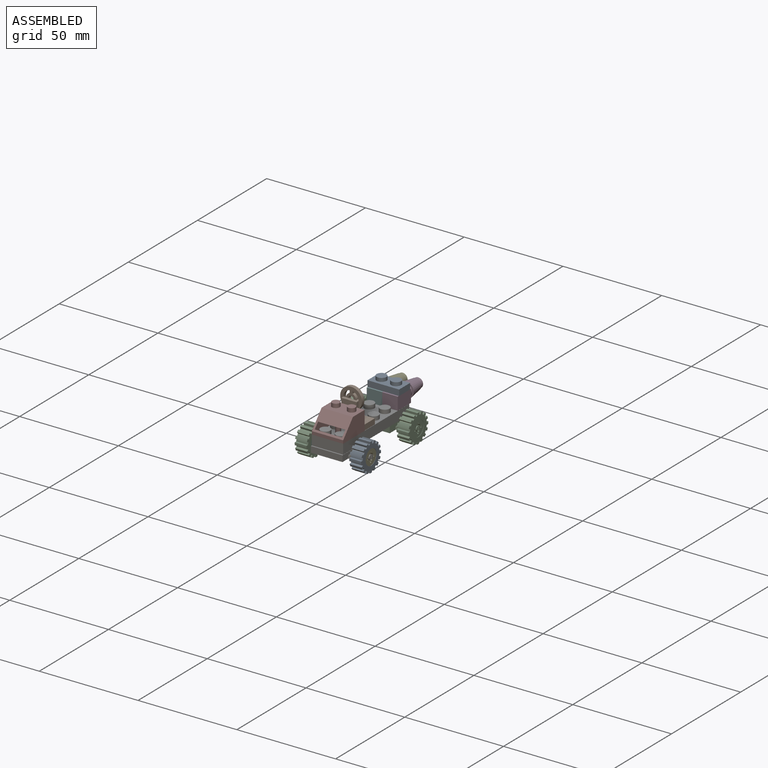
[diagram: assembled view]
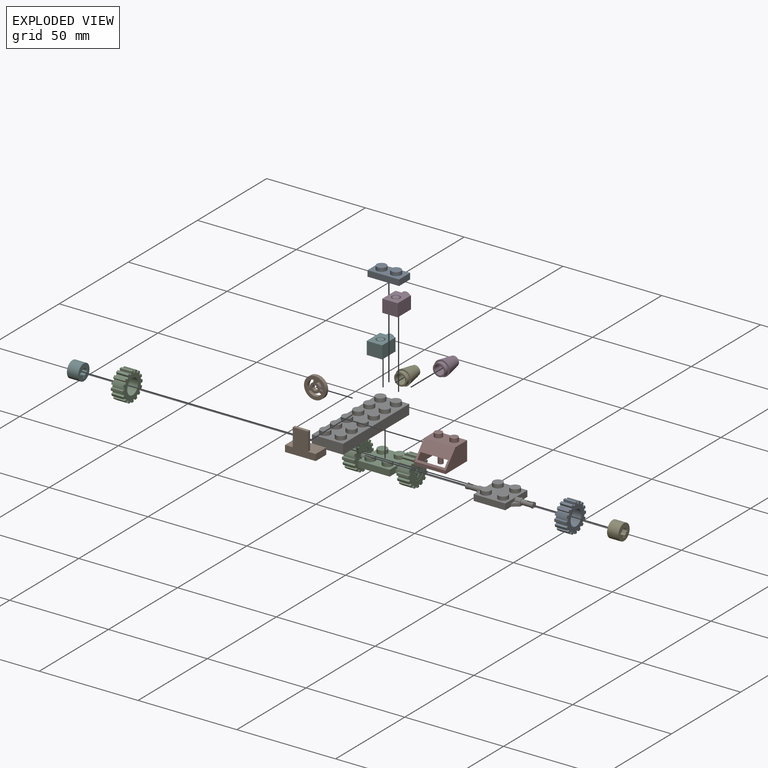
[diagram: exploded view]
GUIDED TOUR — MATED ASSEMBLY WITH SUBASSEMBLIES (Onshape document 5908bd3b1f64391017bcbc16, AutoMate assembly 5908bd3b1f64391017bcbc16_93580afd437a5e38cb3de206_40b358b850b188636dec0b28_default)

This assembly has 19 component occurrences arranged in 15 top-level units: 14 individual components plus 1 subassembly (S0). The tour has two levels: first the top level, where each subassembly is treated as one rigid unit; then each subassembly is toured internally in its own section (nesting deeper than one subassembly level is flattened into its subassembly's section).

Components are labeled P0..P18 across the whole record; subassembly units are labeled S0..S0. A mate is a constraint between two units; its type names the relative motion it leaves free:
  FASTENED — locks the two components together rigidly (no relative motion).
Axis/direction vectors are unit vectors and 'through' points are millimeter coordinates, both in the assembly's world frame.

TOP-LEVEL MATES (between units; each subassembly's internal mates are listed in its own section)
  1. FASTENED "Fastened 2": P16 <-> P18, direction (-1.000, 0.000, 0.000) through (-28.91, 1.36, -17.36) mm
  2. FASTENED "Fastened 4": P13 <-> P17, direction (1.000, 0.000, 0.000) through (-56.66, 1.36, -17.36) mm
  3. FASTENED "Fastened 9": P1 <-> P12, direction (0.000, 1.000, 0.000) through (-39.95, 11.06, 1.17) mm
  4. FASTENED "Fastened 10": P5 <-> P6, direction (0.000, 0.000, -1.000) through (-43.88, 37.84, -10.82) mm
  5. FASTENED "Fastened 7": P8 <-> P6, direction (-1.000, 0.000, 0.000) through (-39.95, -5.96, -10.82) mm
  6. FASTENED "Fastened 5": P6 <-> P18, direction (0.000, 0.000, -1.000) through (-39.91, 1.36, -15.82) mm
  7. FASTENED "Fastened 13": P4 <-> P5, direction (0.000, -1.000, 0.000) through (-43.86, 43.15, -6.83) mm
  8. FASTENED "Fastened 1": P17 <-> P18, direction (1.000, 0.000, 0.000) through (-50.91, 1.36, -17.36) mm
  9. FASTENED "Fastened 6": P6 <-> S0, direction (0.000, 0.000, -1.000) through (-40.07, 35.76, -15.82) mm
  10. FASTENED "Fastened 14": P11 <-> P3, direction (0.000, 0.000, -1.000) through (-39.93, 38.35, -4.38) mm
  11. FASTENED "Fastened 12": P14 <-> P3, direction (0.000, -1.000, 0.000) through (-36.01, 43.15, -6.83) mm
  12. FASTENED "Fastened 11": P3 <-> P6, direction (0.000, 0.000, -1.000) through (-36.03, 37.84, -10.82) mm
  13. FASTENED "Fastened 3": P0 <-> P16, direction (-1.000, 0.000, 0.000) through (-26.03, 1.36, -17.36) mm
  14. FASTENED "Fastened 8": P1 <-> P8, direction (0.000, -1.000, 0.000) through (-39.95, 9.52, -6.02) mm

TOP-LEVEL ASSEMBLY ORDER
  1. P6 — the base component [order heuristic]
  2. S0 — core [order heuristic]
  3. P3 — core [order heuristic]
  4. P5 — core [order heuristic]
  5. P8 [order verified]
  6. P1 — core [order heuristic]
  7. P4 — core [order heuristic]
  8. P14 — core [order heuristic]
  9. P18 — core [order heuristic]
  10. P13 — core [order heuristic]
  11. P17 — core [order heuristic]
  12. P0 — core [order heuristic]
  13. P16 — core [order heuristic]
  14. P11 [order verified]
  15. P12 [order verified]
Order-tag legend:
  [order verified] — this step's position reverses a verified removal order: the component was checked to insert without passing through the ones already placed.
  [order heuristic] — the first 12 components form the assembly's core: parts whose collision-free extraction could not be verified, listed in mate-graph order.

Of the 19 component occurrences, 14 carry the full construction recipe — the FeatureScript program that regenerates the part's solid from scratch; the rest are supplied as boundary geometry only. Each toured unit is shown spotlighted twice — assembled, then exploded with a leader line back to its socket (green = recipe-attached component, orange = geometry-only, blue = subassembly unit; the rest desaturated gray).
NOTE — this tour is split across 2 documents so each fits a 32k-token context. This is document 1: the component sections continue in the remaining 1 document, each repeating the header above.
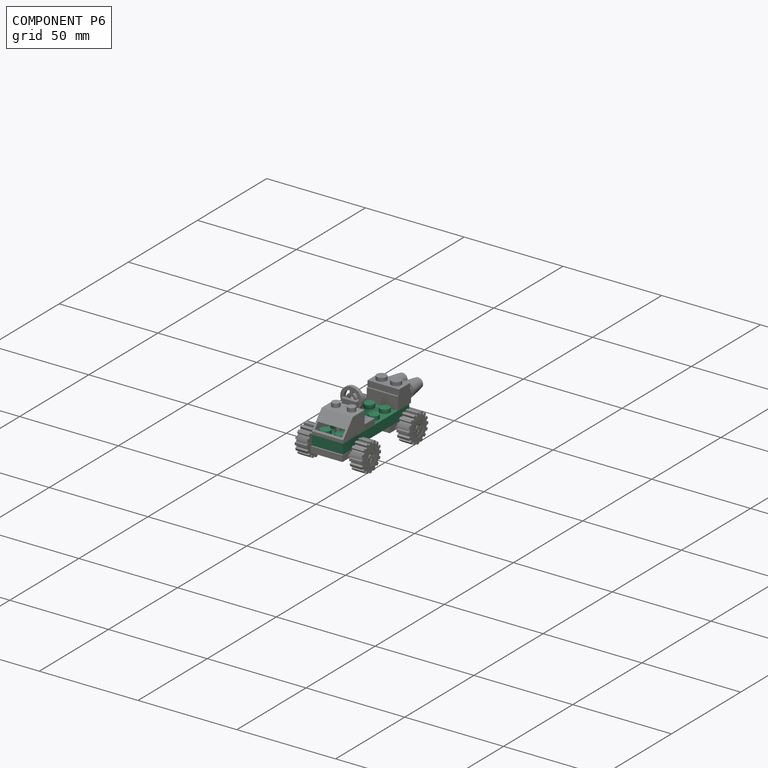
[diagram: component P6 — assembled]
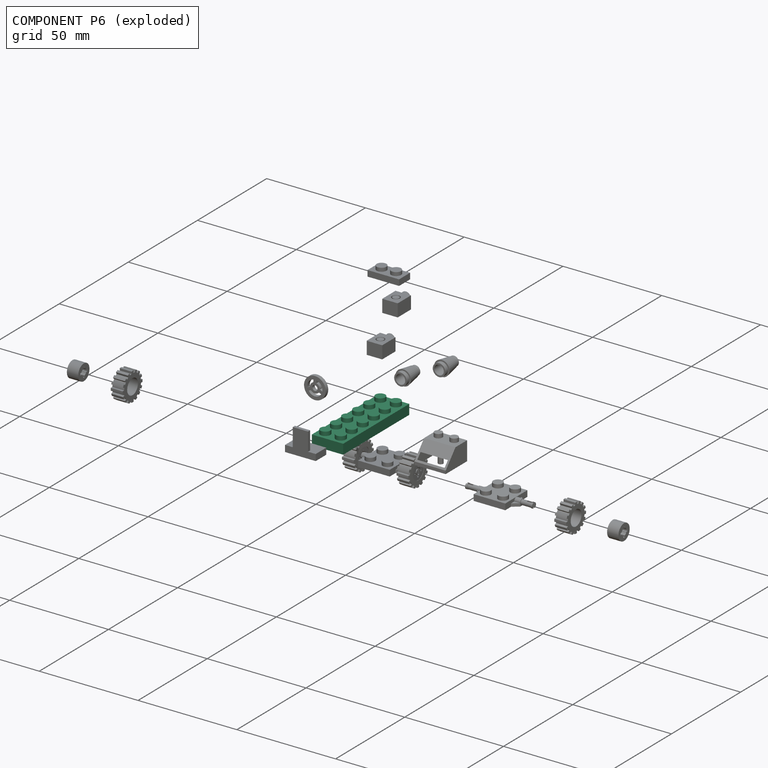
[diagram: component P6 — exploded]
COMPONENT P6 — recipe-attached (CADFS 00742789, mesh-verified: the recipe's output STEP matches this component's geometry to below the mesh-comparison resolution (tessellation chordal tolerance ~0.0763 mm)).
Held by: FASTENED mate "Fastened 10" to P5; FASTENED mate "Fastened 7" to P8; FASTENED mate "Fastened 5" to P18; FASTENED mate "Fastened 6" to P2; FASTENED mate "Fastened 11" to P3.
Construction recipe (FeatureScript — the CAD program that rebuilds this solid; sketch coordinates are in the units given by the * unit suffixes, e.g. mm):

FeatureScript 1511;
import(path : "onshape/std/geometry.fs", version : "1511.0");
import(path : "onshape/std/common.fs", version : "1511.0");
const mm = millimeter;
const VERTEX = EntityType.VERTEX;
const EDGE = EntityType.EDGE;
const FACE = EntityType.FACE;
const BODY = EntityType.BODY;
function v(x, y){return vector(x, y);}
function OD(order){return orderDisambiguation(order);}
function OSD(set){return originalSetDisambiguation(set);}
function TD(topology){return topologyDisambiguation(topology);}
function TDD(query){return trueDependencyDisambiguation(query);}
function sQuery(a, b, c) {return sketchEntityQuery(a, b, c);}

annotation { "Feature Type Name" : "Feature", "Feature Type Description" : "" }
export const myFeature = defineFeature(function(context is Context, id is Id, definition is map)
    precondition{}
    {
        {
            var Q0;
            Q0=qCreatedBy(makeId("Top.planeOp"),FACE);
            var sketch = newSketch(context, id + "F0", { "sketchPlane" : qUnion([Q0])});
            skLineSegment(sketch, "E0", {"start": v(-52.83, 62.4) * mm, "end": v(-52.83, 14.6) * mm});
            skLineSegment(sketch, "E1", {"start": v(-52.83, 62.4) * mm, "end": v(-36.98, 62.4) * mm});
            skLineSegment(sketch, "E2", {"start": v(-36.98, 14.6) * mm, "end": v(-36.98, 62.4) * mm});
            skLineSegment(sketch, "E3", {"start": v(-36.98, 14.6) * mm, "end": v(-52.83, 14.6) * mm});
            skSolve(sketch);
        }
        {
            var Q0;
            Q0 = qSketchRegion(id + "F0", true);
            extrude(context, id + "F1", {"entities" : qUnion([Q0]), "depth" : 5 * mm, "offsetDistance" : 25 * mm});
        }
        {
            var Q0;
            Q0=makeQuery(id+"F1.opExtrude","CAP_FACE",FACE,{"disambiguationData":[OSD([sQuery(id+"F0.wireOp",EDGE,"E0"),sQuery(id+"F0.wireOp",EDGE,"E1"),sQuery(id+"F0.wireOp",EDGE,"E2"),sQuery(id+"F0.wireOp",EDGE,"E3")])],"isStart":false});
            var sketch = newSketch(context, id + "F2", { "sketchPlane" : qUnion([Q0])});
            skCircle(sketch, "E4", {"center": v(-48.83, 58.4) * mm, "radius": 2.5 * mm});
            skCircle(sketch, "E5", {"center": v(-40.98, 58.4) * mm, "radius": 2.5 * mm});
            skCircle(sketch, "E6", {"center": v(-48.83, 18.6) * mm, "radius": 2.5 * mm});
            skCircle(sketch, "E7", {"center": v(-40.98, 18.6) * mm, "radius": 2.5 * mm});
            skCircle(sketch, "E8", {"center": v(-48.83, 50.4) * mm, "radius": 2.5 * mm});
            skCircle(sketch, "E9", {"center": v(-40.98, 50.4) * mm, "radius": 2.5 * mm});
            skCircle(sketch, "E10", {"center": v(-48.83, 26.4) * mm, "radius": 2.5 * mm});
            skCircle(sketch, "E11", {"center": v(-40.98, 26.4) * mm, "radius": 2.5 * mm});
            skCircle(sketch, "E12", {"center": v(-48.83, 42.4) * mm, "radius": 2.5 * mm});
            skCircle(sketch, "E13", {"center": v(-40.98, 42.4) * mm, "radius": 2.5 * mm});
            skCircle(sketch, "E14", {"center": v(-48.83, 34.4) * mm, "radius": 2.5 * mm});
            skCircle(sketch, "E15", {"center": v(-40.98, 34.4) * mm, "radius": 2.5 * mm});
            skSolve(sketch);
        }
        {
            var Q0;
            Q0 = qSketchRegion(id + "F2", true);
            extrude(context, id + "F3", {"entities" : qUnion([Q0]), "operationType" : NewBodyOperationType.ADD, "depth" : 2 * mm, "offsetDistance" : 25 * mm});
        }
        {
            var Q0;
            Q0=makeQuery(id+"F1.opExtrude","CAP_FACE",FACE,{"disambiguationData":[OSD([sQuery(id+"F0.wireOp",EDGE,"E0"),sQuery(id+"F0.wireOp",EDGE,"E1"),sQuery(id+"F0.wireOp",EDGE,"E2"),sQuery(id+"F0.wireOp",EDGE,"E3")])],"isStart":true});
            var sketch = newSketch(context, id + "F4", { "sketchPlane" : qUnion([Q0])});
            skLineSegment(sketch, "E16", {"start": v(-51.52, -16.07) * mm, "end": v(-38.2, -16.07) * mm});
            skLineSegment(sketch, "E17", {"start": v(-51.52, -16.07) * mm, "end": v(-51.52, -60.97) * mm});
            skLineSegment(sketch, "E18", {"start": v(-51.52, -60.97) * mm, "end": v(-38.2, -60.97) * mm});
            skLineSegment(sketch, "E19", {"start": v(-38.2, -60.97) * mm, "end": v(-38.2, -16.07) * mm});
            skSolve(sketch);
        }
        {
            var Q0;
            Q0 = qSketchRegion(id + "F4", true);
            extrude(context, id + "F5", {"entities" : qUnion([Q0]), "operationType" : NewBodyOperationType.REMOVE, "oppositeDirection" : true, "depth" : 2.8 * mm, "offsetDistance" : 25 * mm});
        }
        {
            var Q0;
            Q0=makeQuery(id+"F5.boolean.opBoolean","COPY",FACE,{"derivedFrom":makeQuery(id+"F5.opExtrude","CAP_FACE",FACE,{"disambiguationData":[OSD([sQuery(id+"F4.wireOp",EDGE,"E16"),sQuery(id+"F4.wireOp",EDGE,"E17"),sQuery(id+"F4.wireOp",EDGE,"E18"),sQuery(id+"F4.wireOp",EDGE,"E19")])],"isStart":false})});
            var sketch = newSketch(context, id + "F6", { "sketchPlane" : qUnion([Q0])});
            skLineSegment(sketch, "E20", {"start": v(-44.86, -16.07) * mm, "end": v(-44.86, -60.97) * mm});
            skCircle(sketch, "E21", {"center": v(-44.86, -21.92) * mm, "radius": 3.25 * mm});
            skCircle(sketch, "E22.1.0.0", {"center": v(-44.9, -30.52) * mm, "radius": 3.25 * mm});
            skCircle(sketch, "E22.2.0.0", {"center": v(-44.95, -39.12) * mm, "radius": 3.25 * mm});
            skCircle(sketch, "E22.3.0.0", {"center": v(-44.99, -47.72) * mm, "radius": 3.25 * mm});
            skCircle(sketch, "E22.4.0.0", {"center": v(-45.03, -56.32) * mm, "radius": 3.25 * mm});
            skLineSegment(sketch, "E22.direction1", {"start": v(-44.86, -21.92) * mm, "end": v(-44.9, -30.52) * mm, "construction": true});
            skCircle(sketch, "E23", {"center": v(-44.86, -21.92) * mm, "radius": 2.05 * mm});
            skCircle(sketch, "E24.1.0.0", {"center": v(-44.9, -30.52) * mm, "radius": 2.05 * mm});
            skCircle(sketch, "E24.2.0.0", {"center": v(-44.94, -39.12) * mm, "radius": 2.05 * mm});
            skCircle(sketch, "E24.3.0.0", {"center": v(-44.98, -47.72) * mm, "radius": 2.05 * mm});
            skCircle(sketch, "E24.4.0.0", {"center": v(-45.02, -56.32) * mm, "radius": 2.05 * mm});
            skSolve(sketch);
        }
        {
            var Q0;
            Q0 = qSketchRegion(id + "F6", true);
            extrude(context, id + "F7", {"entities" : qUnion([Q0]), "operationType" : NewBodyOperationType.ADD, "depth" : 2.8 * mm, "offsetDistance" : 25 * mm});
        }
    });
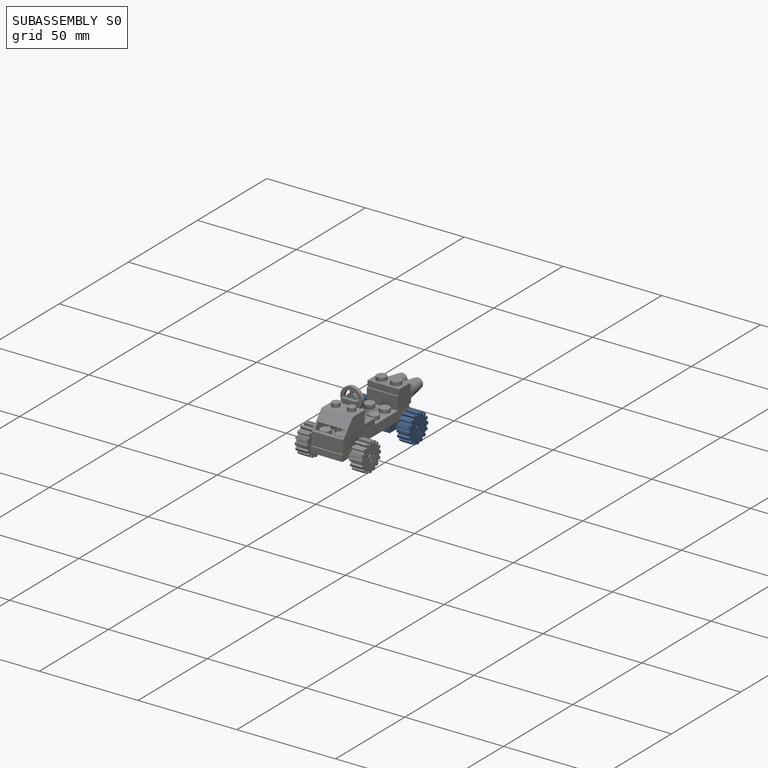
[diagram: subassembly S0 — assembled]
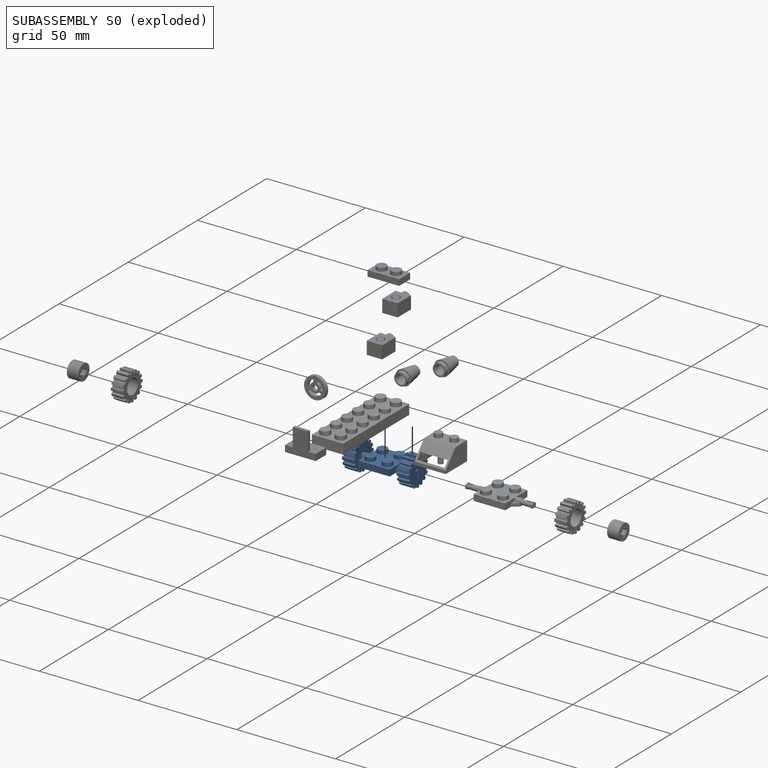
[diagram: subassembly S0 — exploded]
SUBASSEMBLY S0 — 5 components (P2, P7, P9, P10, P15), of which 3 recipe-attached; toured below.
Held by: FASTENED mate "Fastened 6" to P6.
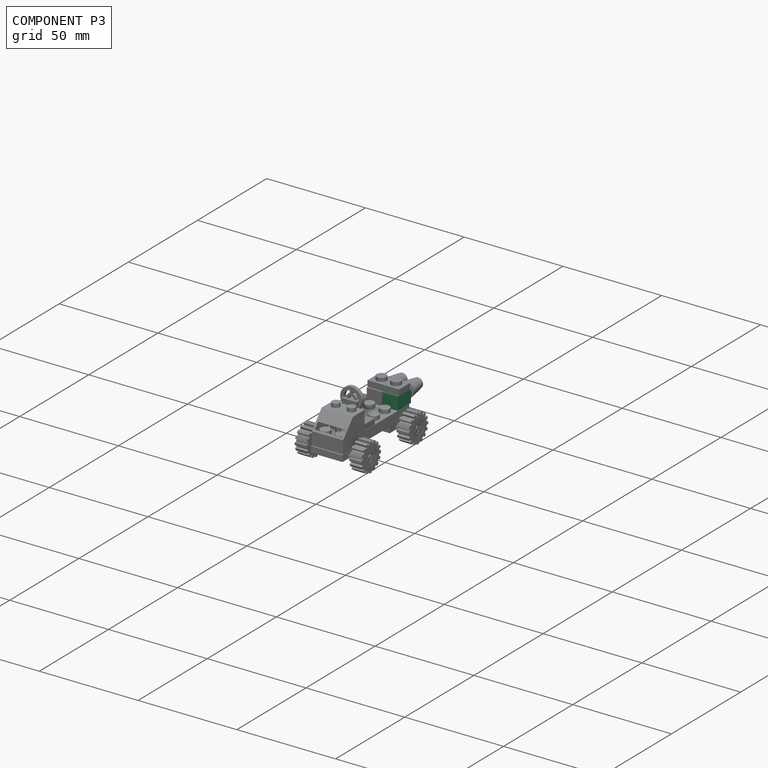
[diagram: component P3 — assembled]
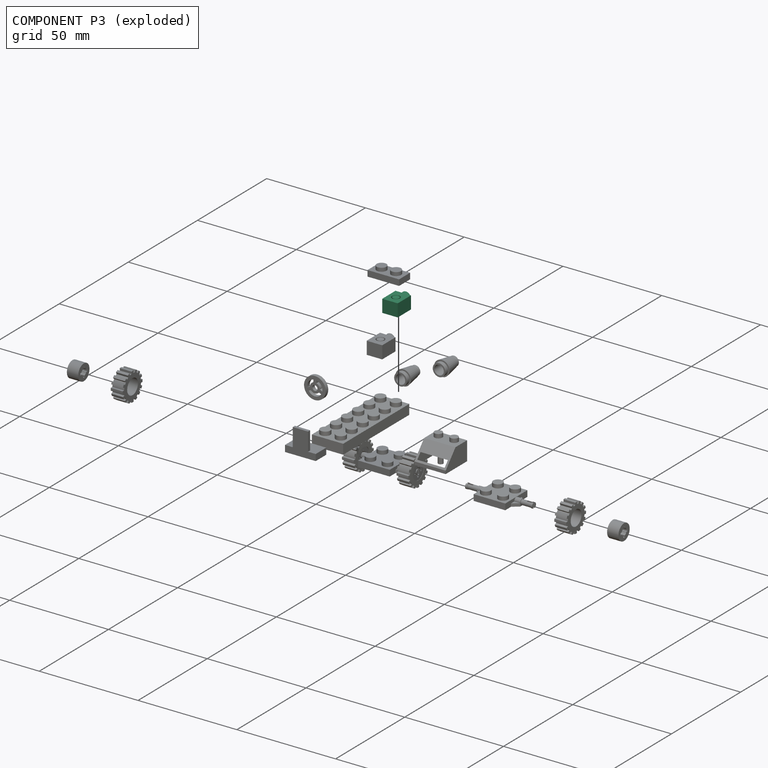
[diagram: component P3 — exploded]
COMPONENT P3 — recipe-attached (CADFS 00825004, mesh-verified: the recipe's output STEP matches this component's geometry to below the mesh-comparison resolution (tessellation chordal tolerance ~0.0231 mm)).
Held by: FASTENED mate "Fastened 14" to P11; FASTENED mate "Fastened 12" to P14; FASTENED mate "Fastened 11" to P6.
Construction recipe (FeatureScript — the CAD program that rebuilds this solid; sketch coordinates are in the units given by the * unit suffixes, e.g. mm):

FeatureScript 1511;
import(path : "onshape/std/geometry.fs", version : "1511.0");
import(path : "onshape/std/common.fs", version : "1511.0");
const mm = millimeter;
const VERTEX = EntityType.VERTEX;
const EDGE = EntityType.EDGE;
const FACE = EntityType.FACE;
const BODY = EntityType.BODY;
function v(x, y){return vector(x, y);}
function OD(order){return orderDisambiguation(order);}
function OSD(set){return originalSetDisambiguation(set);}
function TD(topology){return topologyDisambiguation(topology);}
function TDD(query){return trueDependencyDisambiguation(query);}
function sQuery(a, b, c) {return sketchEntityQuery(a, b, c);}

annotation { "Feature Type Name" : "Feature", "Feature Type Description" : "" }
export const myFeature = defineFeature(function(context is Context, id is Id, definition is map)
    precondition{}
    {
        {
            var Q0;
            Q0=qCreatedBy(makeId("Top.planeOp"),FACE);
            var sketch = newSketch(context, id + "F0", { "sketchPlane" : qUnion([Q0])});
            skLineSegment(sketch, "E0", {"start": v(-59.05, 48.37) * mm, "end": v(-51.2, 48.37) * mm});
            skLineSegment(sketch, "E1", {"start": v(-51.2, 48.37) * mm, "end": v(-51.2, 41.92) * mm});
            skLineSegment(sketch, "E2", {"start": v(-51.2, 41.92) * mm, "end": v(-59.05, 41.92) * mm});
            skLineSegment(sketch, "E3", {"start": v(-59.05, 41.92) * mm, "end": v(-59.05, 48.37) * mm});
            skSolve(sketch);
        }
        {
            var Q0;
            Q0 = qSketchRegion(id + "F0", true);
            extrude(context, id + "F1", {"entities" : qUnion([Q0]), "depth" : 9.6 * mm, "offsetDistance" : 25 * mm});
        }
        {
            var Q0;
            Q0=makeQuery(id+"F1.opExtrude","CAP_FACE",FACE,{"disambiguationData":[OSD([sQuery(id+"F0.wireOp",EDGE,"E0"),sQuery(id+"F0.wireOp",EDGE,"E1"),sQuery(id+"F0.wireOp",EDGE,"E2"),sQuery(id+"F0.wireOp",EDGE,"E3")])],"isStart":false});
            var sketch = newSketch(context, id + "F2", { "sketchPlane" : qUnion([Q0])});
            skCircle(sketch, "E4", {"center": v(-55.12, 45.92) * mm, "radius": 2.43 * mm});
            skSolve(sketch);
        }
        {
            var Q0;
            Q0 = qSketchRegion(id + "F2", true);
            extrude(context, id + "F3", {"entities" : qUnion([Q0]), "operationType" : NewBodyOperationType.ADD, "depth" : 2 * mm, "offsetDistance" : 25 * mm});
        }
        {
            var Q0;
            Q0=makeQuery(id+"F1.opExtrude","SWEPT_FACE",FACE,{"disambiguationData":[OSD([sQuery(id+"F0.wireOp",EDGE,"E2")])]});
            var sketch = newSketch(context, id + "F4", { "sketchPlane" : qUnion([Q0])});
            skLineSegment(sketch, "E5.bottom", {"start": v(-52.47, 3.04) * mm, "end": v(-57.85, 3.04) * mm});
            skLineSegment(sketch, "E5.top", {"start": v(-52.47, 8.27) * mm, "end": v(-57.85, 8.27) * mm});
            skLineSegment(sketch, "E5.left", {"start": v(-52.47, 3.04) * mm, "end": v(-52.47, 8.27) * mm});
            skLineSegment(sketch, "E5.right", {"start": v(-57.85, 3.04) * mm, "end": v(-57.85, 8.27) * mm});
            skSolve(sketch);
        }
        {
            var Q0;
            Q0 = qSketchRegion(id + "F4", true);
            extrude(context, id + "F5", {"entities" : qUnion([Q0]), "operationType" : NewBodyOperationType.REMOVE, "oppositeDirection" : true, "depth" : 6 * mm, "offsetDistance" : 25 * mm});
        }
        {
            var Q0;
            Q0=makeQuery(id+"F1.opExtrude","SWEPT_FACE",FACE,{"disambiguationData":[OSD([sQuery(id+"F0.wireOp",EDGE,"E0")])]});
            var sketch = newSketch(context, id + "F6", { "sketchPlane" : qUnion([Q0])});
            skCircle(sketch, "E6", {"center": v(54.99, 4.52) * mm, "radius": 1.63 * mm});
            skCircle(sketch, "E7", {"center": v(54.99, 4.52) * mm, "radius": 2.03 * mm});
            skSolve(sketch);
        }
        {
            var Q0;
            Q0 = qSketchRegion(id + "F6", true);
            extrude(context, id + "F7", {"entities" : qUnion([Q0]), "operationType" : NewBodyOperationType.REMOVE, "oppositeDirection" : true, "depth" : 1 * mm, "offsetDistance" : 25 * mm});
        }
    });
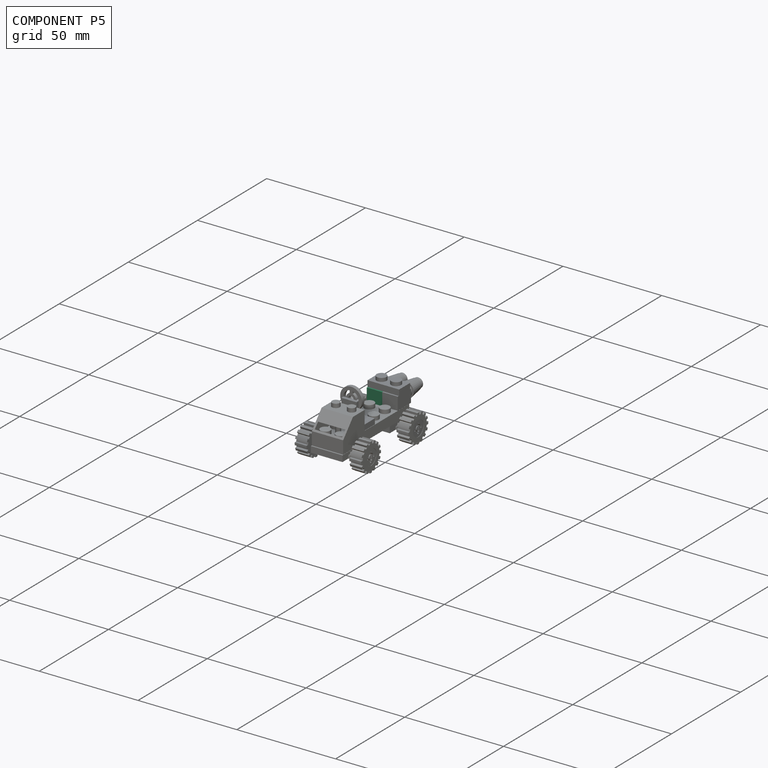
[diagram: component P5 — assembled]
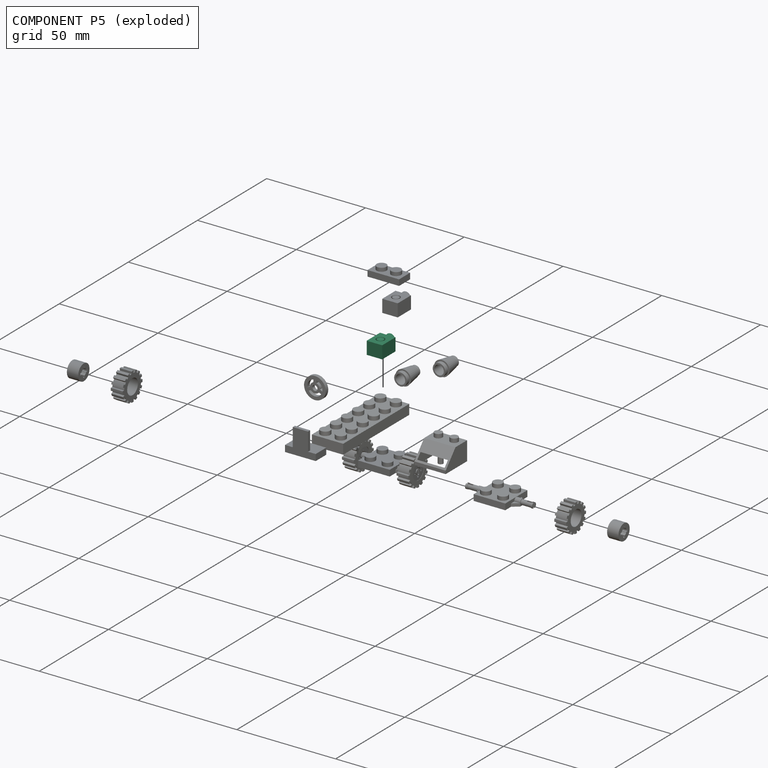
[diagram: component P5 — exploded]
COMPONENT P5 — same part as P3 (CADFS 00825004); its construction recipe is shown at P3.
Held by: FASTENED mate "Fastened 10" to P6; FASTENED mate "Fastened 13" to P4.
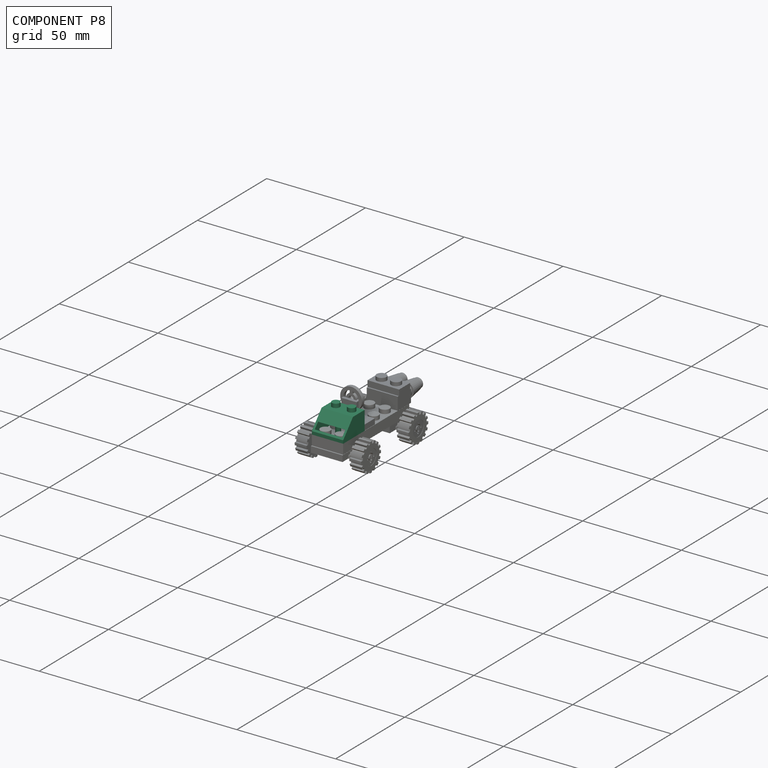
[diagram: component P8 — assembled]
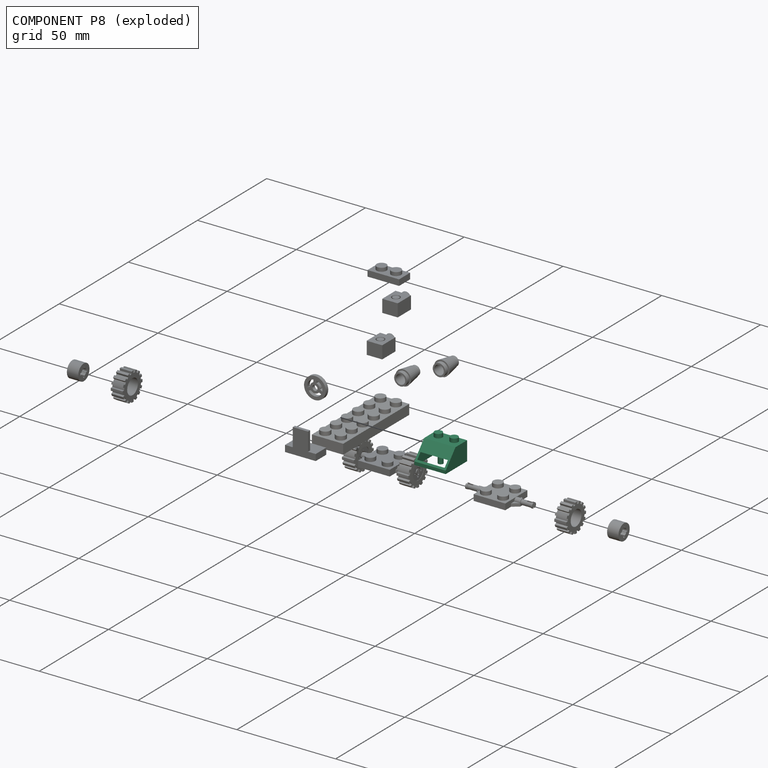
[diagram: component P8 — exploded]
COMPONENT P8 — recipe-attached (CADFS 00750105, mesh-verified: the recipe's output STEP matches this component's geometry to below the mesh-comparison resolution (tessellation chordal tolerance ~0.0375 mm)).
Held by: FASTENED mate "Fastened 7" to P6; FASTENED mate "Fastened 8" to P1.
Construction recipe (FeatureScript — the CAD program that rebuilds this solid; sketch coordinates are in the units given by the * unit suffixes, e.g. mm):

FeatureScript 1511;
import(path : "onshape/std/geometry.fs", version : "1511.0");
import(path : "onshape/std/common.fs", version : "1511.0");
const mm = millimeter;
const VERTEX = EntityType.VERTEX;
const EDGE = EntityType.EDGE;
const FACE = EntityType.FACE;
const BODY = EntityType.BODY;
function v(x, y){return vector(x, y);}
function OD(order){return orderDisambiguation(order);}
function OSD(set){return originalSetDisambiguation(set);}
function TD(topology){return topologyDisambiguation(topology);}
function TDD(query){return trueDependencyDisambiguation(query);}
function sQuery(a, b, c) {return sketchEntityQuery(a, b, c);}

annotation { "Feature Type Name" : "Feature", "Feature Type Description" : "" }
export const myFeature = defineFeature(function(context is Context, id is Id, definition is map)
    precondition{}
    {
        {
            var Q0;
            Q0=qCreatedBy(makeId("Right.planeOp"),FACE);
            var sketch = newSketch(context, id + "F0", { "sketchPlane" : qUnion([Q0])});
            skLineSegment(sketch, "E0", {"start": v(-17.25, 47.73) * mm, "end": v(-17.25, 38.13) * mm});
            skLineSegment(sketch, "E1", {"start": v(-17.25, 38.13) * mm, "end": v(-32.73, 38.13) * mm});
            skLineSegment(sketch, "E2", {"start": v(-32.73, 38.13) * mm, "end": v(-32.73, 39.7) * mm});
            skLineSegment(sketch, "E3", {"start": v(-17.25, 47.73) * mm, "end": v(-25.65, 47.73) * mm});
            skLineSegment(sketch, "E4", {"start": v(-25.65, 47.73) * mm, "end": v(-32.73, 39.7) * mm});
            skSolve(sketch);
        }
        {
            var Q0;
            Q0 = qSketchRegion(id + "F0", true);
            extrude(context, id + "F1", {"entities" : qUnion([Q0]), "depth" : 15.85 * mm, "offsetDistance" : 25 * mm});
        }
        {
            var Q0;
            Q0=makeQuery(id+"F1.opExtrude","SWEPT_FACE",FACE,{"disambiguationData":[OSD([sQuery(id+"F0.wireOp",EDGE,"E3")])]});
            var sketch = newSketch(context, id + "F2", { "sketchPlane" : qUnion([Q0])});
            skCircle(sketch, "E5", {"center": v(3.97, -21.05) * mm, "radius": 1.97 * mm});
            skCircle(sketch, "E6", {"center": v(11.88, -20.95) * mm, "radius": 1.97 * mm});
            skSolve(sketch);
        }
        {
            var Q0;
            Q0 = qSketchRegion(id + "F2", true);
            extrude(context, id + "F3", {"entities" : qUnion([Q0]), "operationType" : NewBodyOperationType.ADD, "depth" : 2 * mm, "offsetDistance" : 25 * mm});
        }
        {
            var Q0;
            Q0=makeQuery(id+"F1.opExtrude","SWEPT_FACE",FACE,{"disambiguationData":[OSD([sQuery(id+"F0.wireOp",EDGE,"E1")])]});
            var sketch = newSketch(context, id + "F4", { "sketchPlane" : qUnion([Q0])});
            skLineSegment(sketch, "E7", {"start": v(1, 32.06) * mm, "end": v(14.85, 32.06) * mm});
            skLineSegment(sketch, "E8", {"start": v(14.85, 32.06) * mm, "end": v(14.85, 21.55) * mm});
            skLineSegment(sketch, "E9", {"start": v(14.85, 21.55) * mm, "end": v(14.85, 18.08) * mm});
            skLineSegment(sketch, "E10", {"start": v(14.85, 18.08) * mm, "end": v(1, 18.08) * mm});
            skLineSegment(sketch, "E11", {"start": v(1, 18.08) * mm, "end": v(1, 32.06) * mm});
            skLineSegment(sketch, "E12", {"start": v(1, 32.06) * mm, "end": v(14.85, 18.08) * mm});
            skLineSegment(sketch, "E13", {"start": v(14.85, 32.06) * mm, "end": v(1, 18.08) * mm});
            skCircle(sketch, "E14", {"center": v(7.92, 25.07) * mm, "radius": 1.24 * mm});
            skCircle(sketch, "E15", {"center": v(7.92, 25.07) * mm, "radius": 0.93 * mm});
            skSolve(sketch);
        }
        {
            var Q0;
            Q0 = qSketchRegion(id + "F4", true);
            var Q1;
            {var subQ0=sQuery(id+"F4.wireOp",EDGE,"E13");var subQ1=sQuery(id+"F4.wireOp",EDGE,"E12");var subQ2=makeQuery(id+"F4.imprint","INTERSECT",VERTEX,{"derivedFrom":[subQ1,subQ0]});Q1=makeQuery(id+"F4.imprint","IMPRINT",FACE,{"disambiguationData":[TD([[makeQuery(id+"F4.imprint","IMPRINT",EDGE,{"disambiguationData":[TD([[subQ2,-1.0]])],"derivedFrom":subQ1}),-1.0]])]});}
            var Q2;
            {var subQ0=sQuery(id+"F4.wireOp",EDGE,"E15");var subQ1=sQuery(id+"F4.wireOp",EDGE,"E12");var subQ2=makeQuery(id+"F4.imprint","INTERSECT",VERTEX,{"disambiguationData":[OD(0.0)],"derivedFrom":[subQ1,subQ0]});Q2=makeQuery(id+"F4.imprint","IMPRINT",FACE,{"disambiguationData":[TD([[makeQuery(id+"F4.imprint","IMPRINT",EDGE,{"disambiguationData":[TD([[subQ2,-1.0]])],"derivedFrom":subQ1}),-1.0]])]});}
            var Q3;
            {var subQ0=sQuery(id+"F4.wireOp",EDGE,"E15");var subQ1=sQuery(id+"F4.wireOp",EDGE,"E12");var subQ2=makeQuery(id+"F4.imprint","INTERSECT",VERTEX,{"disambiguationData":[OD(0.0)],"derivedFrom":[subQ1,subQ0]});Q3=makeQuery(id+"F4.imprint","IMPRINT",FACE,{"disambiguationData":[TD([[makeQuery(id+"F4.imprint","IMPRINT",EDGE,{"disambiguationData":[TD([[subQ2,-1.0]])],"derivedFrom":subQ1}),1.0]])]});}
            var Q4;
            {var subQ0=sQuery(id+"F4.wireOp",EDGE,"E13");var subQ1=sQuery(id+"F4.wireOp",EDGE,"E12");var subQ2=makeQuery(id+"F4.imprint","INTERSECT",VERTEX,{"derivedFrom":[subQ1,subQ0]});Q4=makeQuery(id+"F4.imprint","IMPRINT",FACE,{"disambiguationData":[TD([[makeQuery(id+"F4.imprint","IMPRINT",EDGE,{"disambiguationData":[TD([[subQ2,-1.0]])],"derivedFrom":subQ1}),1.0]])]});}
            extrude(context, id + "F5", {"entities" : qUnion([Q0, Q1, Q2, Q3, Q4]), "operationType" : NewBodyOperationType.REMOVE, "oppositeDirection" : true, "depth" : 5 * mm, "offsetDistance" : 25 * mm});
        }
    });
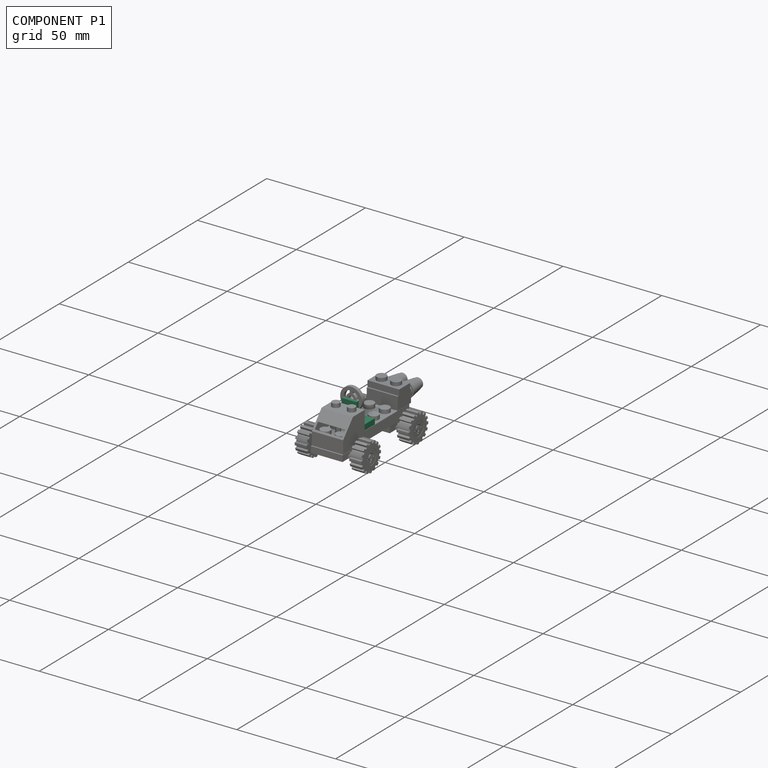
[diagram: component P1 — assembled]
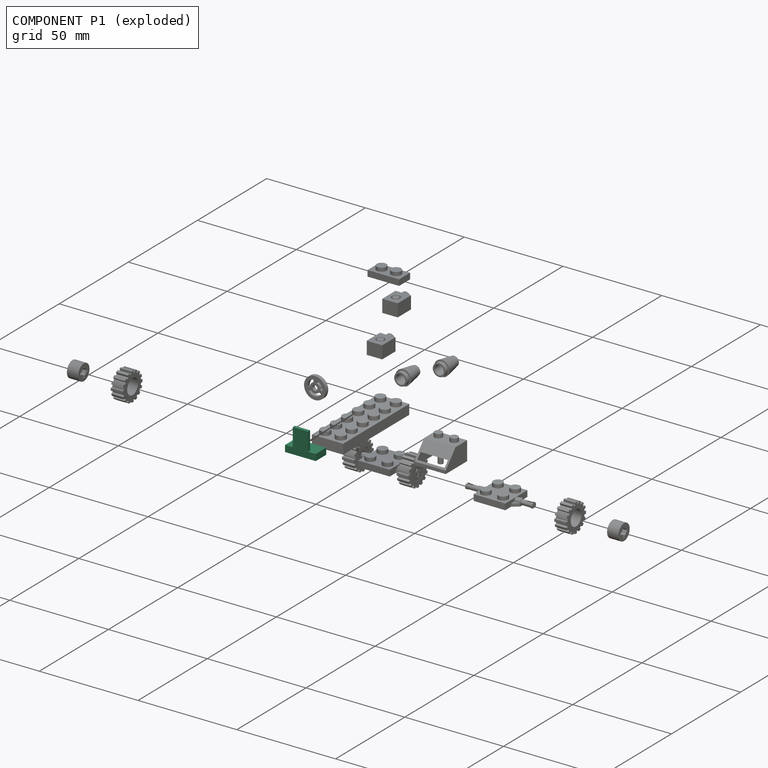
[diagram: component P1 — exploded]
COMPONENT P1 — recipe-attached (CADFS 00787979, mesh-verified: the recipe's output STEP matches this component's geometry to below the mesh-comparison resolution (tessellation chordal tolerance ~0.032 mm)).
Held by: FASTENED mate "Fastened 9" to P12; FASTENED mate "Fastened 8" to P8.
Construction recipe (FeatureScript — the CAD program that rebuilds this solid; sketch coordinates are in the units given by the * unit suffixes, e.g. mm):

FeatureScript 1511;
import(path : "onshape/std/geometry.fs", version : "1511.0");
import(path : "onshape/std/common.fs", version : "1511.0");
const mm = millimeter;
const VERTEX = EntityType.VERTEX;
const EDGE = EntityType.EDGE;
const FACE = EntityType.FACE;
const BODY = EntityType.BODY;
function v(x, y){return vector(x, y);}
function OD(order){return orderDisambiguation(order);}
function OSD(set){return originalSetDisambiguation(set);}
function TD(topology){return topologyDisambiguation(topology);}
function TDD(query){return trueDependencyDisambiguation(query);}
function sQuery(a, b, c) {return sketchEntityQuery(a, b, c);}

annotation { "Feature Type Name" : "Feature", "Feature Type Description" : "" }
export const myFeature = defineFeature(function(context is Context, id is Id, definition is map)
    precondition{}
    {
        {
            var Q0;
            Q0=qCreatedBy(makeId("Top.planeOp"),FACE);
            var sketch = newSketch(context, id + "F0", { "sketchPlane" : qUnion([Q0])});
            skLineSegment(sketch, "E0", {"start": v(-66.14, 47) * mm, "end": v(-66.14, 39.39) * mm});
            skLineSegment(sketch, "E1", {"start": v(-66.14, 47) * mm, "end": v(-50.6, 47) * mm});
            skLineSegment(sketch, "E2", {"start": v(-50.6, 47) * mm, "end": v(-50.6, 39.39) * mm});
            skLineSegment(sketch, "E3", {"start": v(-50.6, 39.39) * mm, "end": v(-66.14, 39.39) * mm});
            skSolve(sketch);
        }
        {
            var Q0;
            Q0 = qSketchRegion(id + "F0", true);
            extrude(context, id + "F1", {"entities" : qUnion([Q0]), "depth" : 3.24 * mm, "offsetDistance" : 25 * mm});
        }
        {
            var Q0;
            Q0=makeQuery(id+"F1.opExtrude","CAP_FACE",FACE,{"disambiguationData":[OSD([sQuery(id+"F0.wireOp",EDGE,"E0"),sQuery(id+"F0.wireOp",EDGE,"E1"),sQuery(id+"F0.wireOp",EDGE,"E2"),sQuery(id+"F0.wireOp",EDGE,"E3")])],"isStart":false});
            var sketch = newSketch(context, id + "F2", { "sketchPlane" : qUnion([Q0])});
            skLineSegment(sketch, "E4", {"start": v(-62.22, 47) * mm, "end": v(-62.22, 45.47) * mm});
            skLineSegment(sketch, "E5", {"start": v(-54.51, 47) * mm, "end": v(-54.51, 45.47) * mm});
            skLineSegment(sketch, "E6", {"start": v(-62.22, 45.47) * mm, "end": v(-54.51, 45.47) * mm});
            skLineSegment(sketch, "E7", {"start": v(-62.22, 47) * mm, "end": v(-54.51, 47) * mm});
            skSolve(sketch);
        }
        {
            var Q0;
            Q0 = qSketchRegion(id + "F2", true);
            extrude(context, id + "F3", {"entities" : qUnion([Q0]), "operationType" : NewBodyOperationType.ADD, "depth" : 9.22 * mm, "offsetDistance" : 25 * mm});
        }
    });
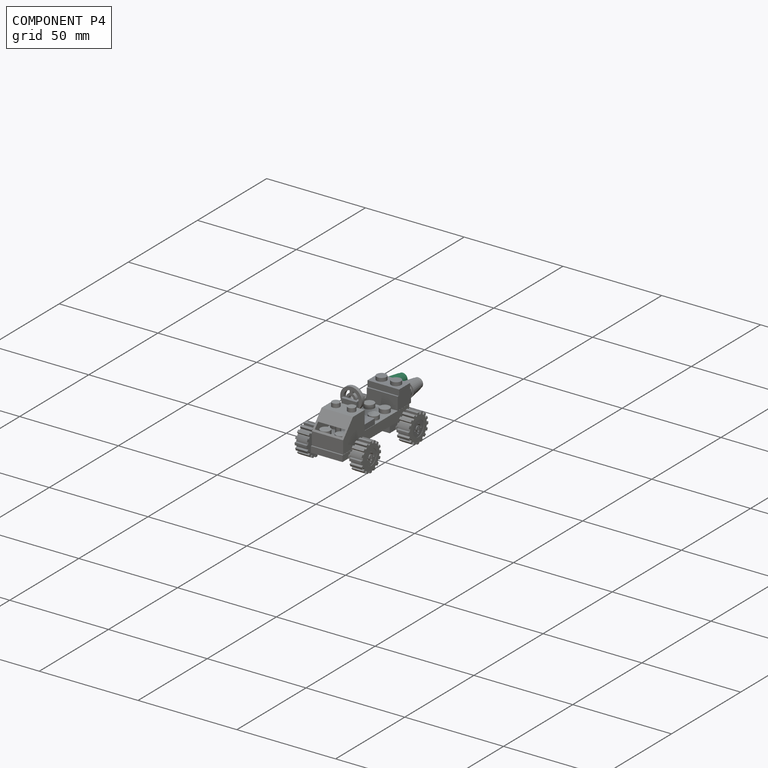
[diagram: component P4 — assembled]
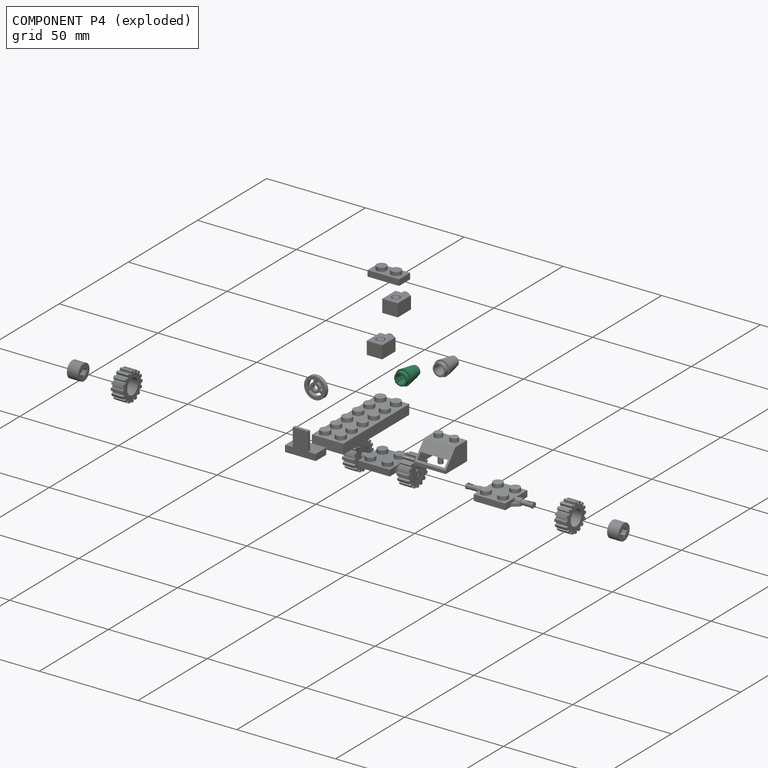
[diagram: component P4 — exploded]
COMPONENT P4 — recipe-attached (CADFS 00769592, mesh-verified: the recipe's output STEP matches this component's geometry to below the mesh-comparison resolution (tessellation chordal tolerance ~0.0232 mm)).
Held by: FASTENED mate "Fastened 13" to P5.
Construction recipe (FeatureScript — the CAD program that rebuilds this solid; sketch coordinates are in the units given by the * unit suffixes, e.g. mm):

FeatureScript 1511;
import(path : "onshape/std/geometry.fs", version : "1511.0");
import(path : "onshape/std/common.fs", version : "1511.0");
const mm = millimeter;
const VERTEX = EntityType.VERTEX;
const EDGE = EntityType.EDGE;
const FACE = EntityType.FACE;
const BODY = EntityType.BODY;
function v(x, y){return vector(x, y);}
function OD(order){return orderDisambiguation(order);}
function OSD(set){return originalSetDisambiguation(set);}
function TD(topology){return topologyDisambiguation(topology);}
function TDD(query){return trueDependencyDisambiguation(query);}
function sQuery(a, b, c) {return sketchEntityQuery(a, b, c);}

annotation { "Feature Type Name" : "Feature", "Feature Type Description" : "" }
export const myFeature = defineFeature(function(context is Context, id is Id, definition is map)
    precondition{}
    {
        {
            var Q0;
            Q0=qCreatedBy(makeId("Top.planeOp"),FACE);
            var sketch = newSketch(context, id + "F0", { "sketchPlane" : qUnion([Q0])});
            skLineSegment(sketch, "E0", {"start": v(-31.94, 22.02) * mm, "end": v(-29.94, 22.02) * mm});
            skLineSegment(sketch, "E1", {"start": v(-29.94, 22.02) * mm, "end": v(-29.94, 22.72) * mm});
            skLineSegment(sketch, "E2", {"start": v(-29.94, 22.72) * mm, "end": v(-22.58, 21.57) * mm});
            skLineSegment(sketch, "E3", {"start": v(-22.58, 21.57) * mm, "end": v(-22.58, 21.27) * mm});
            skLineSegment(sketch, "E4", {"start": v(-22.58, 21.27) * mm, "end": v(-21.08, 21.27) * mm});
            skLineSegment(sketch, "E5", {"start": v(-21.08, 21.27) * mm, "end": v(-21.08, 18.82) * mm});
            skLineSegment(sketch, "E6", {"start": v(-31.94, 19.82) * mm, "end": v(-31.94, 22.02) * mm});
            skPoint(sketch, "E7.orphan", {"position": v(-21.08, 16.37) * mm});
            skLineSegment(sketch, "E8", {"start": v(-21.08, 18.82) * mm, "end": v(-21.08, 16.37) * mm});
            skLineSegment(sketch, "E9", {"start": v(-21.08, 18.82) * mm, "end": v(-31.94, 18.82) * mm});
            skLineSegment(sketch, "E10", {"start": v(-31.94, 18.82) * mm, "end": v(-31.94, 19.82) * mm});
            skSolve(sketch);
        }
        {
            var Q0;
            Q0=makeQuery(id+"F0.imprint","IMPRINT",FACE,{"disambiguationData":[TD([[makeQuery(id+"F0.imprint","IMPRINT",EDGE,{"derivedFrom":sQuery(id+"F0.wireOp",EDGE,"E0")}),-1.0]])]});
            var Q1;
            Q1=sQuery(id+"F0.wireOp",EDGE,"E9");
            revolve(context, id + "F1", {"surfaceOperationType" : NewSurfaceOperationType.NEW, "entities" : qUnion([Q0]), "axis" : qUnion([Q1]), "revolveType" : RevolveType.FULL});
        }
        {
            var Q0;
            Q0=makeQuery(id+"F1.opRevolve","SWEPT_FACE",FACE,{"disambiguationData":[OSD([sQuery(id+"F0.wireOp",EDGE,"E6"),sQuery(id+"F0.wireOp",EDGE,"E10")])]});
            var sketch = newSketch(context, id + "F2", { "sketchPlane" : qUnion([Q0])});
            skCircle(sketch, "E11", {"center": v(-18.82, 0) * mm, "radius": 2.4 * mm});
            skSolve(sketch);
        }
        {
            var Q0;
            Q0 = qSketchRegion(id + "F2", true);
            extrude(context, id + "F3", {"entities" : qUnion([Q0]), "operationType" : NewBodyOperationType.REMOVE, "oppositeDirection" : true, "depth" : 25 * mm, "offsetDistance" : 25 * mm});
        }
    });
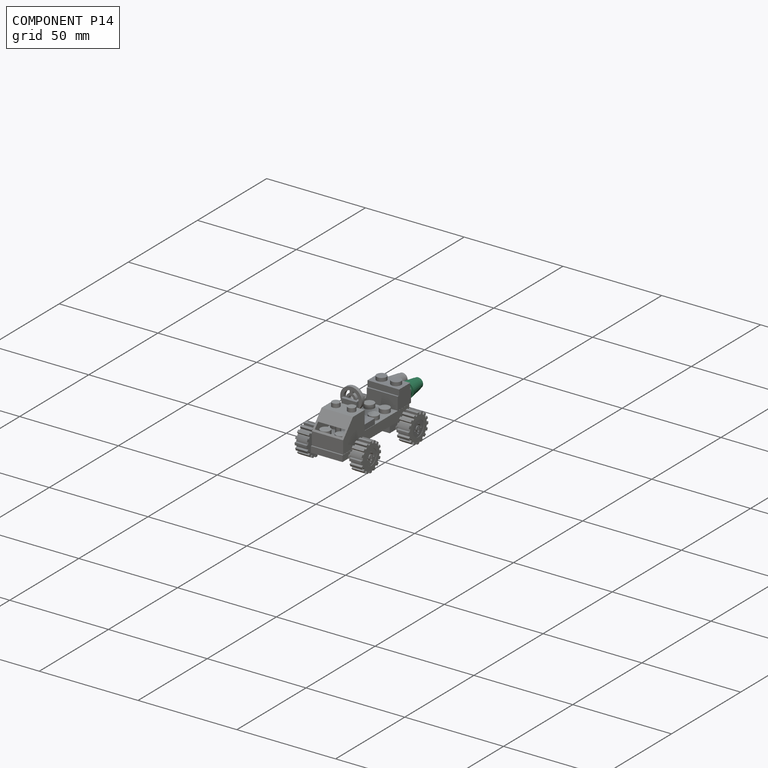
[diagram: component P14 — assembled]
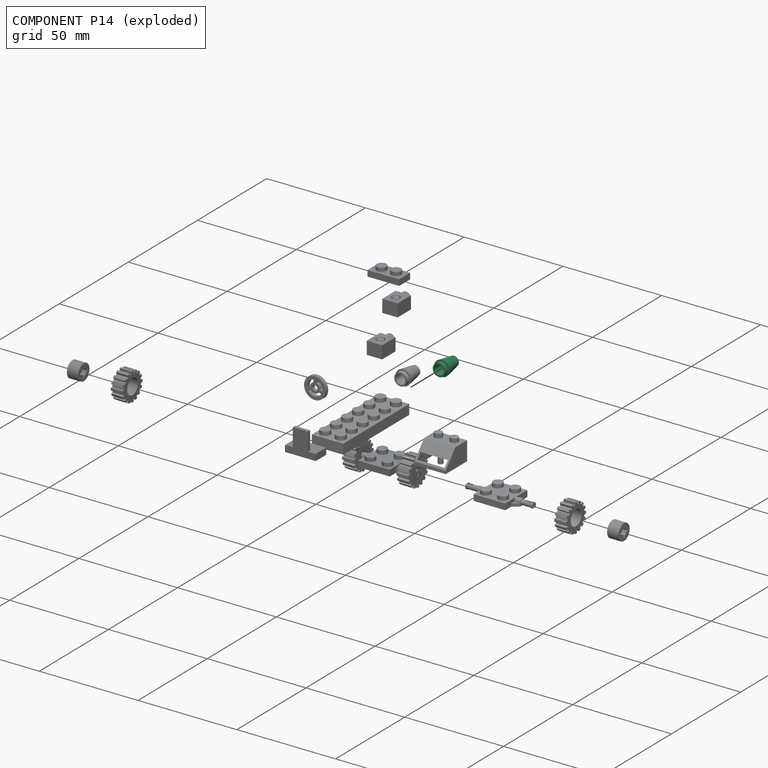
[diagram: component P14 — exploded]
COMPONENT P14 — same part as P4 (CADFS 00769592); its construction recipe is shown at P4.
Held by: FASTENED mate "Fastened 12" to P3.
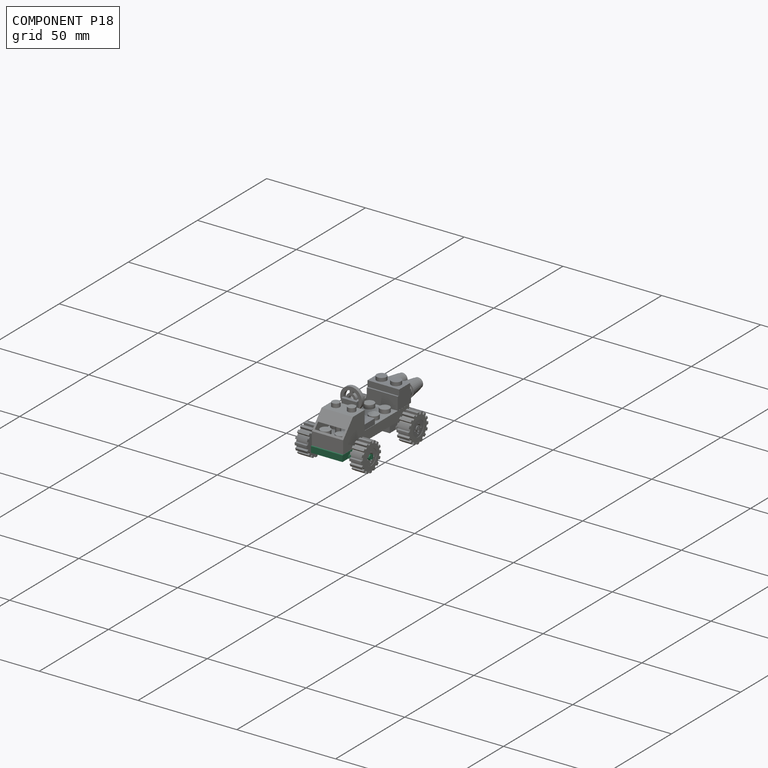
[diagram: component P18 — assembled]
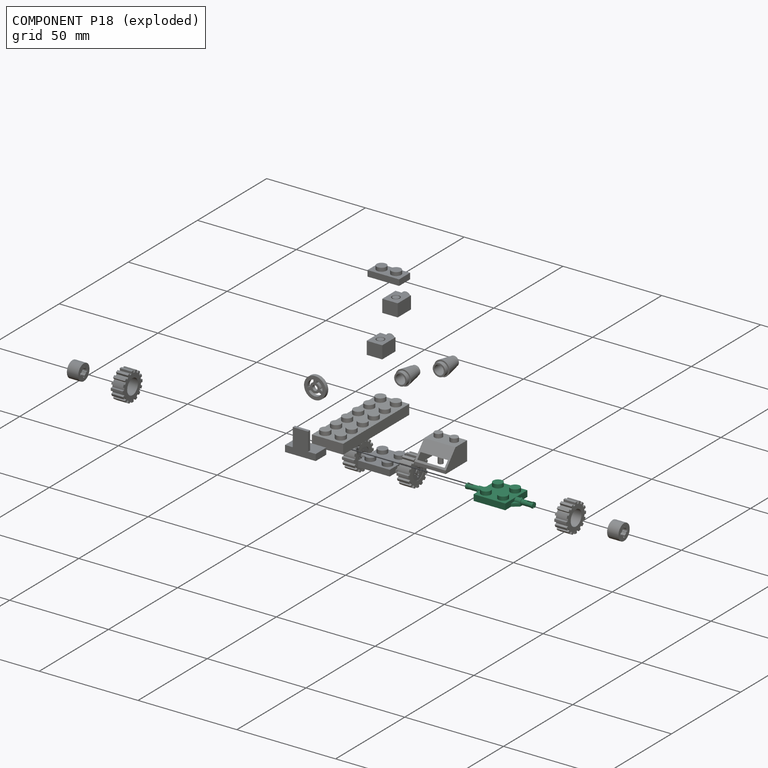
[diagram: component P18 — exploded]
COMPONENT P18 — same part as P9 (CADFS 00735374); its construction recipe is shown at P9.
Held by: FASTENED mate "Fastened 2" to P16; FASTENED mate "Fastened 5" to P6; FASTENED mate "Fastened 1" to P17.
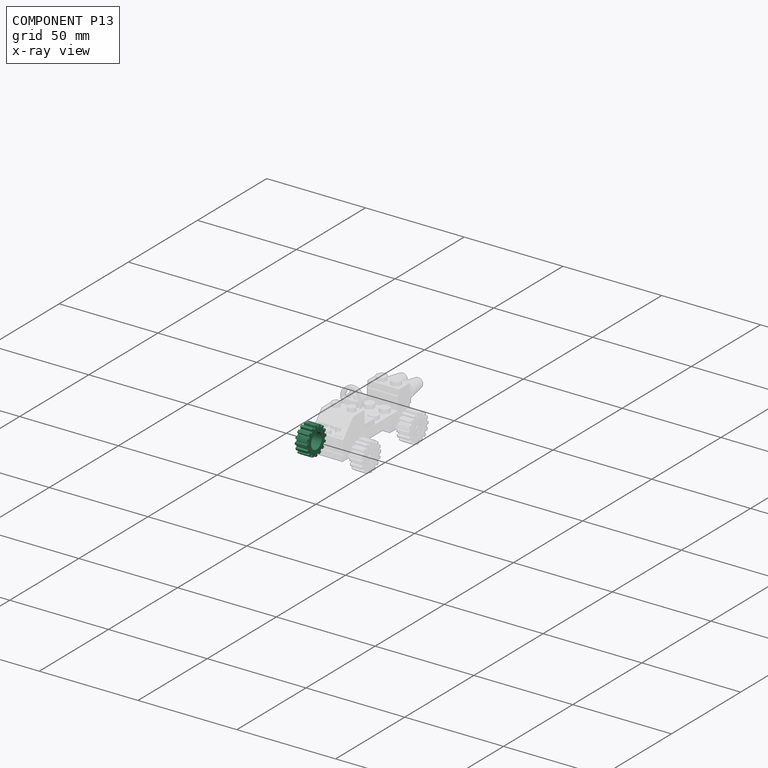
[diagram: component P13 — x-ray view]
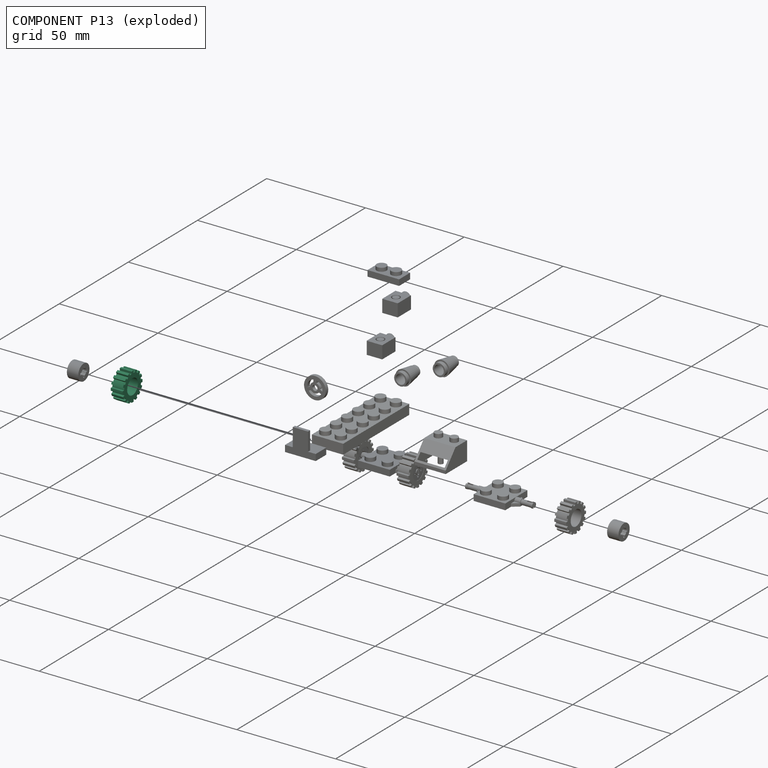
[diagram: component P13 — exploded]
COMPONENT P13 — same part as P0 (CADFS 00750091); its construction recipe is shown at P0.
Held by: FASTENED mate "Fastened 4" to P17.
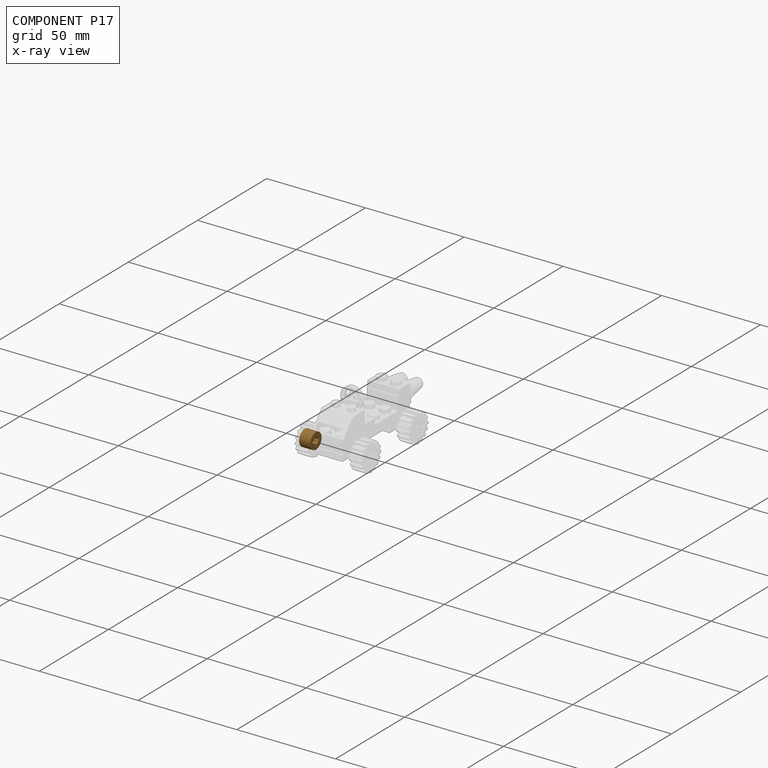
[diagram: component P17 — x-ray view]
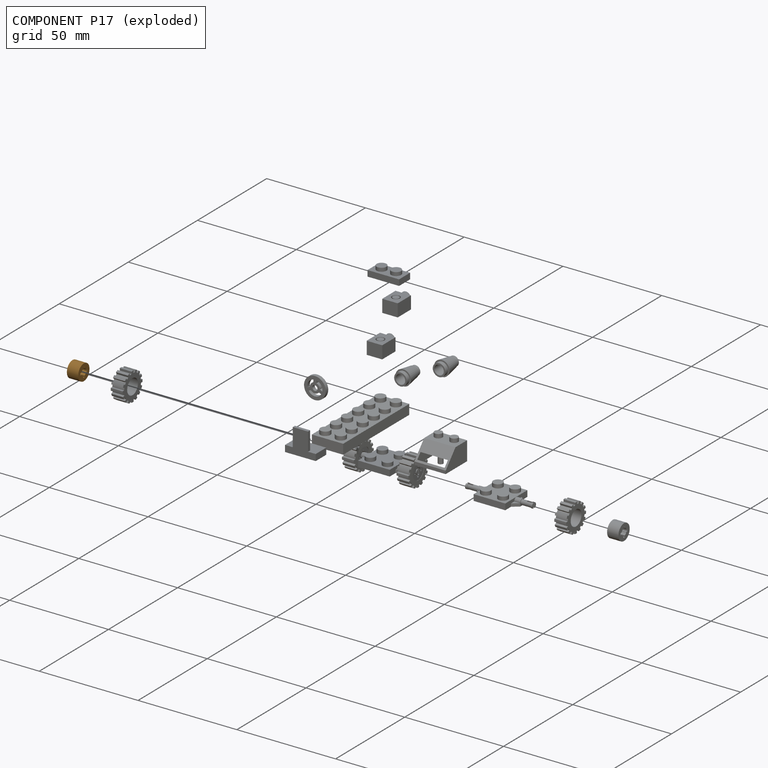
[diagram: component P17 — exploded]
COMPONENT P17 — geometry summary (no construction recipe available for this part):
  bounding box: 8.2 x 8.2 x 5.8 mm
  B-rep topology: 1 solid, 19 faces, 102 edges
  volume: 226 mm^3 (59% of its bounding box)
  symmetry: 2-fold rotationally symmetric about the x axis; 4-fold rotationally symmetric about the y axis; 2-fold rotationally symmetric about the z axis; mirror-symmetric across its x mid-plane, y mid-plane, z mid-plane
Held by: FASTENED mate "Fastened 4" to P13; FASTENED mate "Fastened 1" to P18.
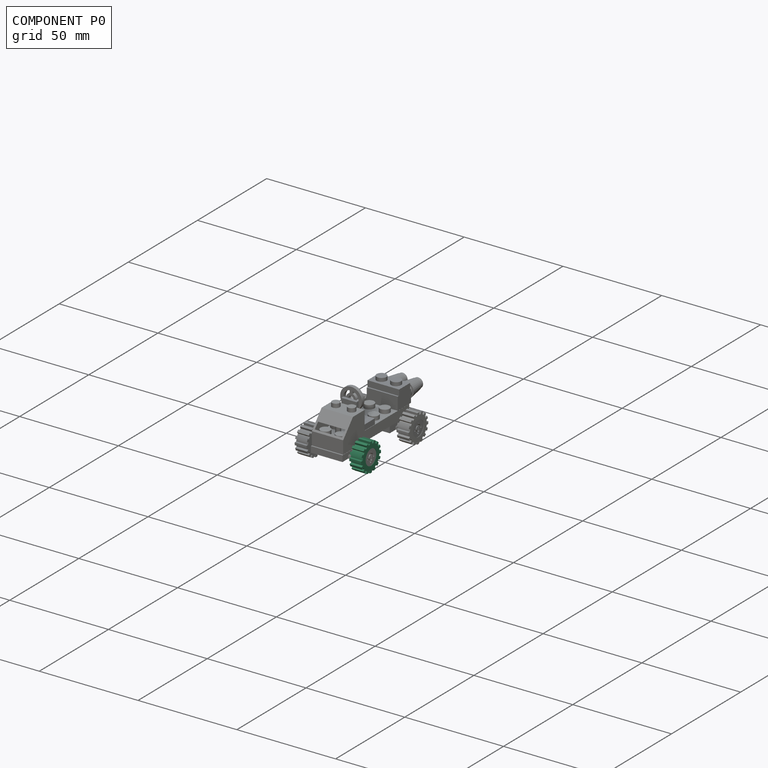
[diagram: component P0 — assembled]
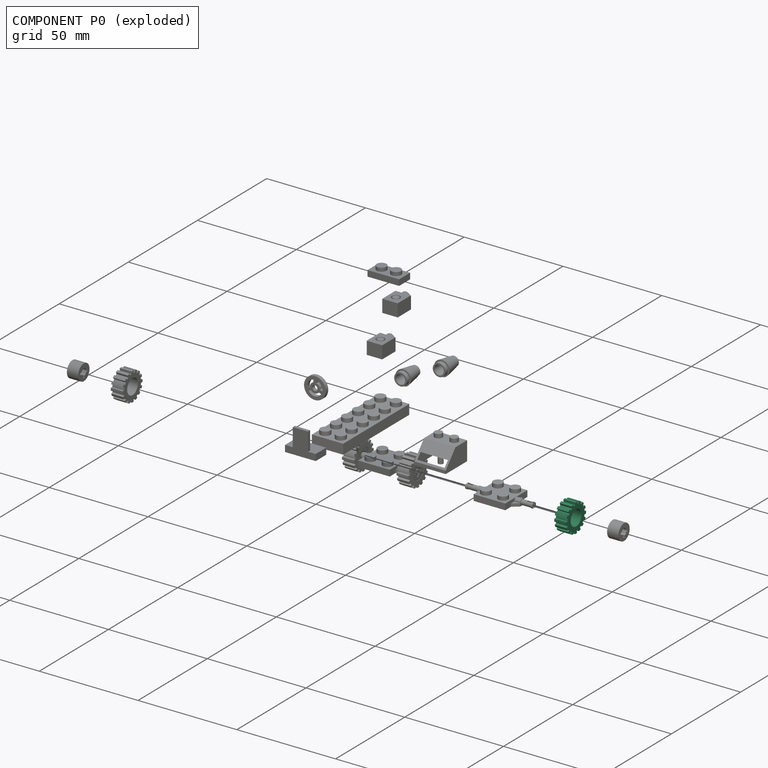
[diagram: component P0 — exploded]
COMPONENT P0 — recipe-attached (CADFS 00750091, mesh-verified: the recipe's output STEP matches this component's geometry to below the mesh-comparison resolution (tessellation chordal tolerance ~0.0318 mm)).
Held by: FASTENED mate "Fastened 3" to P16.
Construction recipe (FeatureScript — the CAD program that rebuilds this solid; sketch coordinates are in the units given by the * unit suffixes, e.g. mm):

FeatureScript 1511;
import(path : "onshape/std/geometry.fs", version : "1511.0");
import(path : "onshape/std/common.fs", version : "1511.0");
const mm = millimeter;
const VERTEX = EntityType.VERTEX;
const EDGE = EntityType.EDGE;
const FACE = EntityType.FACE;
const BODY = EntityType.BODY;
function v(x, y){return vector(x, y);}
function OD(order){return orderDisambiguation(order);}
function OSD(set){return originalSetDisambiguation(set);}
function TD(topology){return topologyDisambiguation(topology);}
function TDD(query){return trueDependencyDisambiguation(query);}
function sQuery(a, b, c) {return sketchEntityQuery(a, b, c);}

annotation { "Feature Type Name" : "Feature", "Feature Type Description" : "" }
export const myFeature = defineFeature(function(context is Context, id is Id, definition is map)
    precondition{}
    {
        {
            var Q0;
            Q0=qCreatedBy(makeId("Front.planeOp"),FACE);
            var sketch = newSketch(context, id + "F0", { "sketchPlane" : qUnion([Q0])});
            skCircle(sketch, "E0", {"center": v(0, 0) * mm, "radius": 3.9 * mm});
            skArc(sketch, "E1", {"start": v(-2.07, 6.9) * mm, "mid": v(-2.69, 6.68) * mm, "end": v(-3.28, 6.4) * mm});
            skCircle(sketch, "E2", {"center": v(0, 0) * mm, "radius": 6.1 * mm});
            skLineSegment(sketch, "E3", {"start": v(-0.58, 6.07) * mm, "end": v(-0.58, 7.18) * mm});
            skLineSegment(sketch, "E4", {"start": v(0.72, 6.06) * mm, "end": v(0.72, 7.16) * mm});
            skArc(sketch, "E5", {"start": v(0.72, 7.16) * mm, "mid": v(0.07, 7.2) * mm, "end": v(-0.58, 7.18) * mm});
            skArc(sketch, "E6", {"start": v(0.72, 6.06) * mm, "mid": v(0.07, 6.1) * mm, "end": v(-0.58, 6.07) * mm});
            skLineSegment(sketch, "E7.1.0", {"start": v(-1.65, 5.87) * mm, "end": v(-2.07, 6.9) * mm});
            skLineSegment(sketch, "E7.1.1", {"start": v(-2.86, 5.39) * mm, "end": v(-3.28, 6.4) * mm});
            skArc(sketch, "E7.1.3", {"start": v(-1.65, 5.87) * mm, "mid": v(-2.27, 5.67) * mm, "end": v(-2.86, 5.39) * mm});
            skLineSegment(sketch, "E7.2.0", {"start": v(-3.77, 4.8) * mm, "end": v(-4.56, 5.58) * mm});
            skLineSegment(sketch, "E7.2.1", {"start": v(-4.7, 3.89) * mm, "end": v(-5.48, 4.67) * mm});
            skArc(sketch, "E7.2.2", {"start": v(-4.56, 5.58) * mm, "mid": v(-5.04, 5.14) * mm, "end": v(-5.48, 4.67) * mm});
            skArc(sketch, "E7.2.3", {"start": v(-3.77, 4.8) * mm, "mid": v(-4.26, 4.37) * mm, "end": v(-4.7, 3.89) * mm});
            skLineSegment(sketch, "E7.3.0", {"start": v(-5.32, 2.98) * mm, "end": v(-6.34, 3.4) * mm});
            skLineSegment(sketch, "E7.3.1", {"start": v(-5.83, 1.79) * mm, "end": v(-6.85, 2.21) * mm});
            skArc(sketch, "E7.3.2", {"start": v(-6.34, 3.4) * mm, "mid": v(-6.62, 2.82) * mm, "end": v(-6.85, 2.21) * mm});
            skArc(sketch, "E7.3.3", {"start": v(-5.32, 2.98) * mm, "mid": v(-5.61, 2.4) * mm, "end": v(-5.83, 1.79) * mm});
            skLineSegment(sketch, "E7.4.0", {"start": v(-6.06, 0.72) * mm, "end": v(-7.16, 0.72) * mm});
            skLineSegment(sketch, "E7.4.1", {"start": v(-6.07, -0.58) * mm, "end": v(-7.18, -0.58) * mm});
            skArc(sketch, "E7.4.2", {"start": v(-7.16, 0.72) * mm, "mid": v(-7.2, 0.07) * mm, "end": v(-7.18, -0.58) * mm});
            skArc(sketch, "E7.4.3", {"start": v(-6.06, 0.72) * mm, "mid": v(-6.1, 0.07) * mm, "end": v(-6.07, -0.58) * mm});
            skLineSegment(sketch, "E7.5.0", {"start": v(-5.87, -1.65) * mm, "end": v(-6.9, -2.07) * mm});
            skLineSegment(sketch, "E7.5.1", {"start": v(-5.39, -2.86) * mm, "end": v(-6.4, -3.28) * mm});
            skArc(sketch, "E7.5.2", {"start": v(-6.9, -2.07) * mm, "mid": v(-6.68, -2.69) * mm, "end": v(-6.4, -3.28) * mm});
            skArc(sketch, "E7.5.3", {"start": v(-5.87, -1.65) * mm, "mid": v(-5.67, -2.27) * mm, "end": v(-5.39, -2.86) * mm});
            skLineSegment(sketch, "E7.6.0", {"start": v(-4.8, -3.77) * mm, "end": v(-5.58, -4.56) * mm});
            skLineSegment(sketch, "E7.6.1", {"start": v(-3.89, -4.7) * mm, "end": v(-4.67, -5.48) * mm});
            skArc(sketch, "E7.6.2", {"start": v(-5.58, -4.56) * mm, "mid": v(-5.14, -5.04) * mm, "end": v(-4.67, -5.48) * mm});
            skArc(sketch, "E7.6.3", {"start": v(-4.8, -3.77) * mm, "mid": v(-4.37, -4.26) * mm, "end": v(-3.89, -4.7) * mm});
            skLineSegment(sketch, "E7.7.0", {"start": v(-2.98, -5.32) * mm, "end": v(-3.4, -6.34) * mm});
            skLineSegment(sketch, "E7.7.1", {"start": v(-1.79, -5.83) * mm, "end": v(-2.21, -6.85) * mm});
            skArc(sketch, "E7.7.2", {"start": v(-3.4, -6.34) * mm, "mid": v(-2.82, -6.62) * mm, "end": v(-2.21, -6.85) * mm});
            skArc(sketch, "E7.7.3", {"start": v(-2.98, -5.32) * mm, "mid": v(-2.4, -5.61) * mm, "end": v(-1.79, -5.83) * mm});
            skLineSegment(sketch, "E7.8.0", {"start": v(-0.72, -6.06) * mm, "end": v(-0.72, -7.16) * mm});
            skLineSegment(sketch, "E7.8.1", {"start": v(0.58, -6.07) * mm, "end": v(0.58, -7.18) * mm});
            skArc(sketch, "E7.8.2", {"start": v(-0.72, -7.16) * mm, "mid": v(-0.07, -7.2) * mm, "end": v(0.58, -7.18) * mm});
            skArc(sketch, "E7.8.3", {"start": v(-0.72, -6.06) * mm, "mid": v(-0.07, -6.1) * mm, "end": v(0.58, -6.07) * mm});
            skLineSegment(sketch, "E7.9.0", {"start": v(1.65, -5.87) * mm, "end": v(2.07, -6.9) * mm});
            skLineSegment(sketch, "E7.9.1", {"start": v(2.86, -5.39) * mm, "end": v(3.28, -6.4) * mm});
            skArc(sketch, "E7.9.2", {"start": v(2.07, -6.9) * mm, "mid": v(2.69, -6.68) * mm, "end": v(3.28, -6.4) * mm});
            skArc(sketch, "E7.9.3", {"start": v(1.65, -5.87) * mm, "mid": v(2.27, -5.67) * mm, "end": v(2.86, -5.39) * mm});
            skLineSegment(sketch, "E7.10.0", {"start": v(3.77, -4.8) * mm, "end": v(4.56, -5.58) * mm});
            skLineSegment(sketch, "E7.10.1", {"start": v(4.7, -3.89) * mm, "end": v(5.48, -4.67) * mm});
            skArc(sketch, "E7.10.2", {"start": v(4.56, -5.58) * mm, "mid": v(5.04, -5.14) * mm, "end": v(5.48, -4.67) * mm});
            skArc(sketch, "E7.10.3", {"start": v(3.77, -4.8) * mm, "mid": v(4.26, -4.37) * mm, "end": v(4.7, -3.89) * mm});
            skLineSegment(sketch, "E7.11.0", {"start": v(5.32, -2.98) * mm, "end": v(6.34, -3.4) * mm});
            skLineSegment(sketch, "E7.11.1", {"start": v(5.83, -1.79) * mm, "end": v(6.85, -2.21) * mm});
            skArc(sketch, "E7.11.2", {"start": v(6.34, -3.4) * mm, "mid": v(6.62, -2.82) * mm, "end": v(6.85, -2.21) * mm});
            skArc(sketch, "E7.11.3", {"start": v(5.32, -2.98) * mm, "mid": v(5.61, -2.4) * mm, "end": v(5.83, -1.79) * mm});
            skLineSegment(sketch, "E7.12.0", {"start": v(6.06, -0.72) * mm, "end": v(7.16, -0.72) * mm});
            skLineSegment(sketch, "E7.12.1", {"start": v(6.07, 0.58) * mm, "end": v(7.18, 0.58) * mm});
            skArc(sketch, "E7.12.2", {"start": v(7.16, -0.72) * mm, "mid": v(7.2, -0.07) * mm, "end": v(7.18, 0.58) * mm});
            skArc(sketch, "E7.12.3", {"start": v(6.06, -0.72) * mm, "mid": v(6.1, -0.07) * mm, "end": v(6.07, 0.58) * mm});
            skLineSegment(sketch, "E7.13.0", {"start": v(5.87, 1.65) * mm, "end": v(6.9, 2.07) * mm});
            skLineSegment(sketch, "E7.13.1", {"start": v(5.39, 2.86) * mm, "end": v(6.4, 3.28) * mm});
            skArc(sketch, "E7.13.2", {"start": v(6.9, 2.07) * mm, "mid": v(6.68, 2.69) * mm, "end": v(6.4, 3.28) * mm});
            skArc(sketch, "E7.13.3", {"start": v(5.87, 1.65) * mm, "mid": v(5.67, 2.27) * mm, "end": v(5.39, 2.86) * mm});
            skLineSegment(sketch, "E7.14.0", {"start": v(4.8, 3.77) * mm, "end": v(5.58, 4.56) * mm});
            skLineSegment(sketch, "E7.14.1", {"start": v(3.89, 4.7) * mm, "end": v(4.67, 5.48) * mm});
            skArc(sketch, "E7.14.2", {"start": v(5.58, 4.56) * mm, "mid": v(5.14, 5.04) * mm, "end": v(4.67, 5.48) * mm});
            skArc(sketch, "E7.14.3", {"start": v(4.8, 3.77) * mm, "mid": v(4.37, 4.26) * mm, "end": v(3.89, 4.7) * mm});
            skLineSegment(sketch, "E7.15.0", {"start": v(2.98, 5.32) * mm, "end": v(3.4, 6.34) * mm});
            skLineSegment(sketch, "E7.15.1", {"start": v(1.79, 5.83) * mm, "end": v(2.21, 6.85) * mm});
            skArc(sketch, "E7.15.2", {"start": v(3.4, 6.34) * mm, "mid": v(2.82, 6.62) * mm, "end": v(2.21, 6.85) * mm});
            skArc(sketch, "E7.15.3", {"start": v(2.98, 5.32) * mm, "mid": v(2.4, 5.61) * mm, "end": v(1.79, 5.83) * mm});
            skSolve(sketch);
        }
        {
            var Q0;
            Q0 = qSketchRegion(id + "F0", true);
            extrude(context, id + "F1", {"entities" : qUnion([Q0]), "depth" : 6 * mm, "offsetDistance" : 25 * mm});
        }
    });
